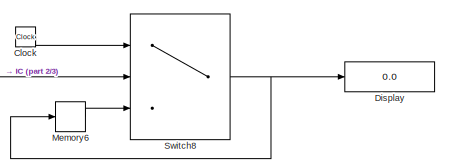
[diagram: root canvas - part 1/3, top right region]
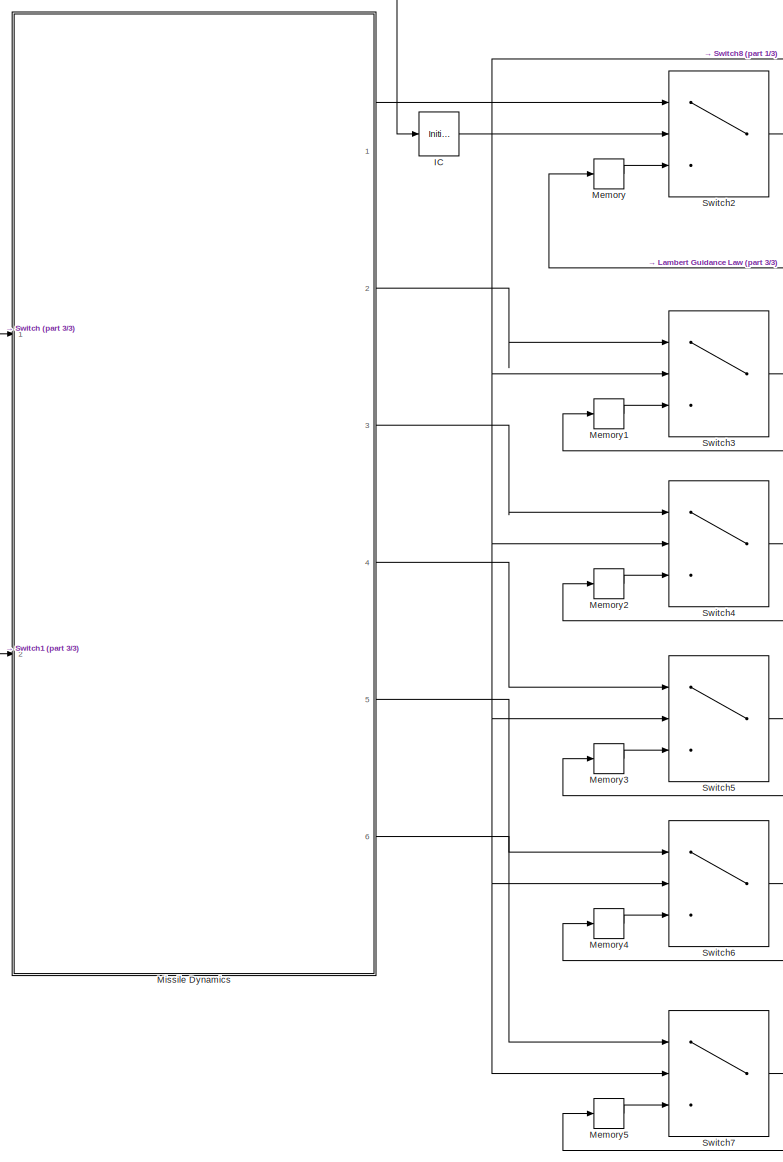
[diagram: root canvas - part 2/3, center side, full height]
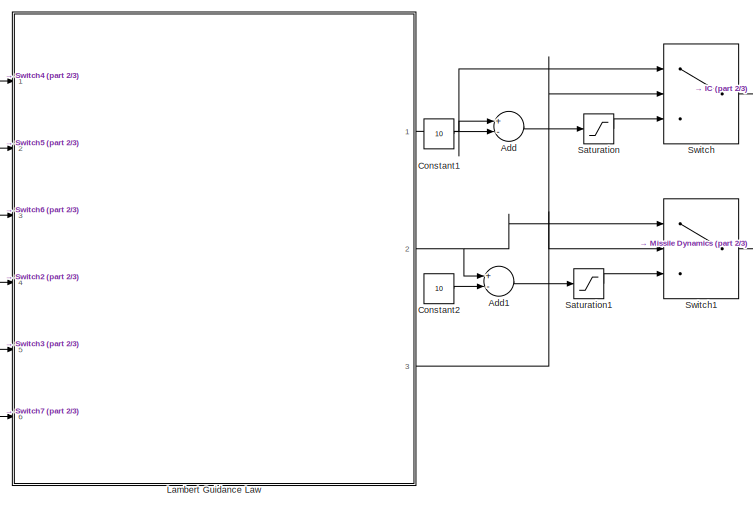
[diagram: root canvas - part 3/3, middle left region]
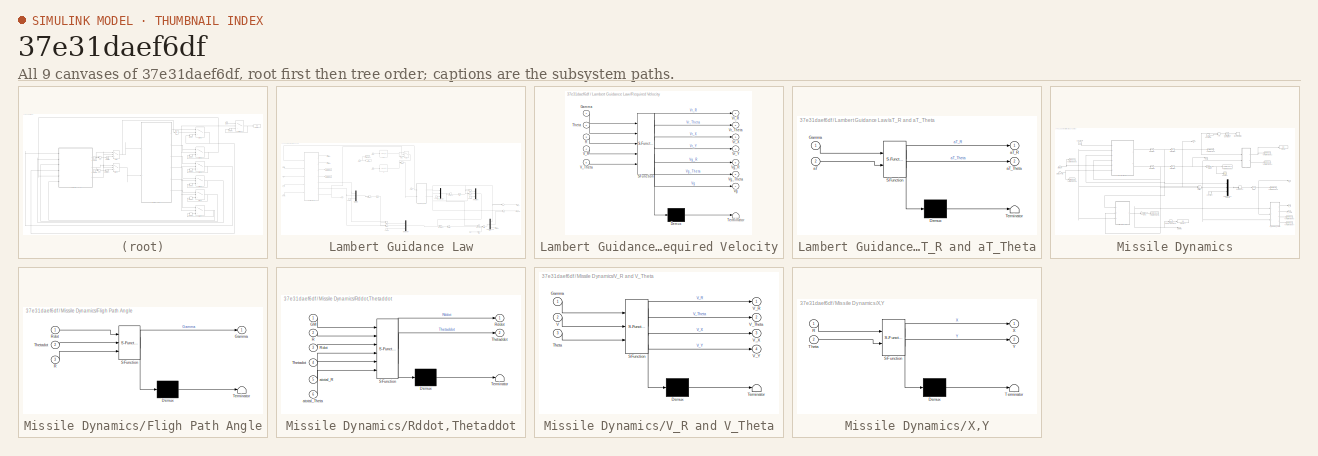
[diagram: thumbnail index - all 9 canvases of the model, root first then tree order]
MODEL slx_37e31daef6df
KIND model
CONFIG AbsTol = auto
CONFIG EnableMultiTasking = off
CONFIG FixedStep = 0.002
CONFIG InitFcn = Initial_Data
CONFIG MaxStep = auto
CONFIG MinStep = auto
CONFIG RelTol = 1e-3
CONFIG SampleTimeConstraint = Unconstrained
CONFIG Solver = FixedStepAuto
CONFIG SolverName = FixedStepAuto
CONFIG StartTime = 0.0
CONFIG StopFcn = Plots_Problme_1_Part_B
CONFIG StopTime = 600
BLOCK [Sum] Add
  InputSameDT = off
  Inputs = +-
  OutDataTypeStr = Inherit: Inherit via internal rule
  Ports = [2, 1]
  SaturateOnIntegerOverflow = off
BLOCK [Sum] Add1
  InputSameDT = off
  Inputs = +-
  OutDataTypeStr = Inherit: Inherit via internal rule
  Ports = [2, 1]
  SaturateOnIntegerOverflow = off
BLOCK [Clock] Clock
BLOCK [Constant] Constant1
  Value = 10
BLOCK [Constant] Constant2
  Value = 10
BLOCK [Display] Display
  Decimation = 1
  Format = long
  Ports = [1]
BLOCK [InitialCondition] IC
  Value = 0.01
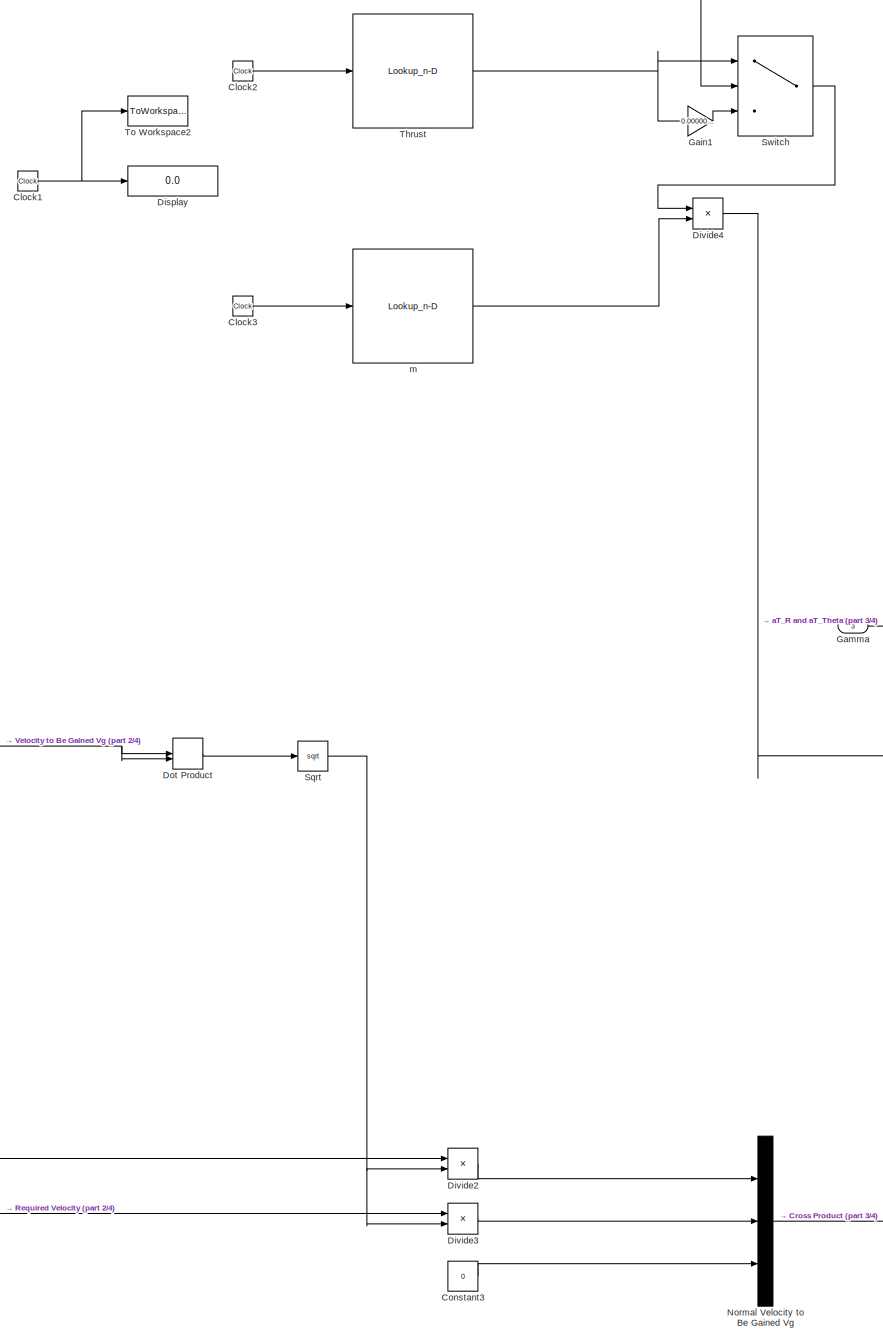
[diagram: Lambert Guidance Law - part 1/4, center side, full height]
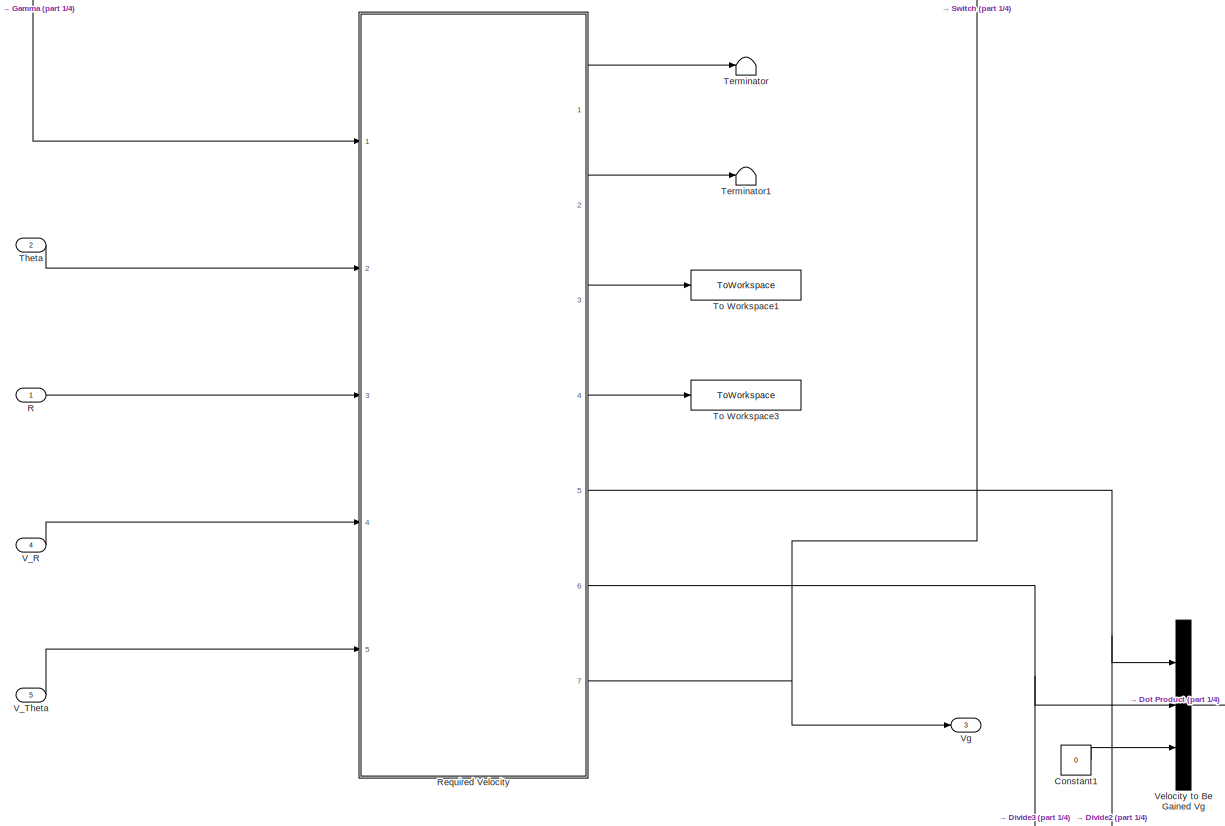
[diagram: Lambert Guidance Law - part 2/4, middle left region]
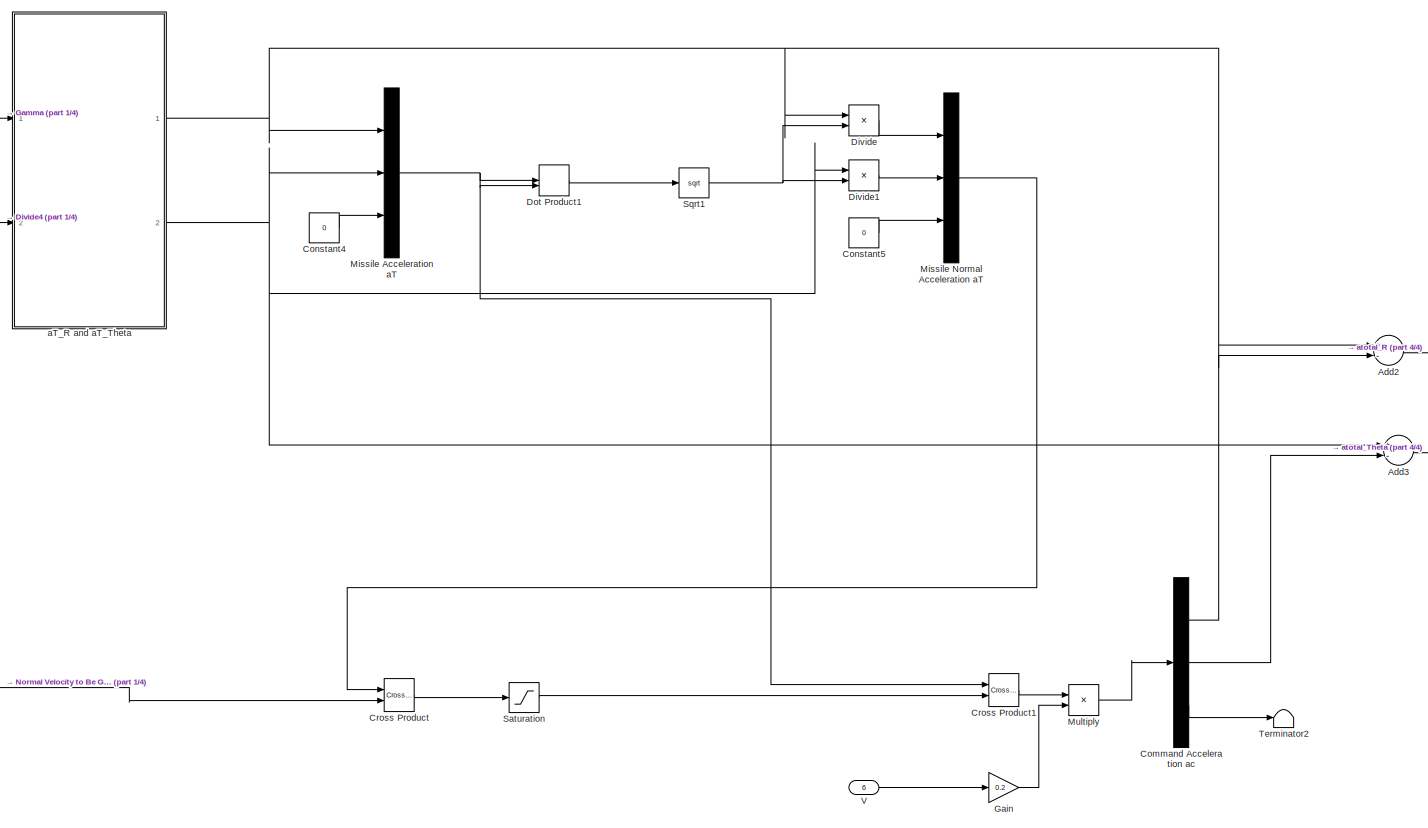
[diagram: Lambert Guidance Law - part 3/4, bottom right region]
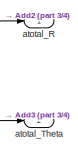
[diagram: Lambert Guidance Law - part 4/4, bottom right region]
BLOCK [SubSystem] Lambert Guidance Law
  Ports = [6, 3]
  RequestExecContextInheritance = off
BLOCK [Sum] Lambert Guidance Law/Add2
  InputSameDT = off
  Inputs = +-
  OutDataTypeStr = Inherit: Inherit via internal rule
  Ports = [2, 1]
  SaturateOnIntegerOverflow = off
BLOCK [Sum] Lambert Guidance Law/Add3
  InputSameDT = off
  Inputs = +-
  OutDataTypeStr = Inherit: Inherit via internal rule
  Ports = [2, 1]
  SaturateOnIntegerOverflow = off
BLOCK [Clock] Lambert Guidance Law/Clock1
BLOCK [Clock] Lambert Guidance Law/Clock2
BLOCK [Clock] Lambert Guidance Law/Clock3
BLOCK [Demux] Lambert Guidance Law/Command Acceleration ac
  DisplayOption = bar
  Outputs = 3
  Ports = [1, 3]
BLOCK [Constant] Lambert Guidance Law/Constant1
  Value = 0
BLOCK [Constant] Lambert Guidance Law/Constant3
  Value = 0
BLOCK [Constant] Lambert Guidance Law/Constant4
  Value = 0
BLOCK [Constant] Lambert Guidance Law/Constant5
  Value = 0
BLOCK [Reference] Lambert Guidance Law/Cross Product  REF=vrlib/Utilities/Cross Product
  Ports = [2, 1]
  SourceBlock = vrlib/Utilities/Cross Product
  SourceProductBaseCode = VR
  SourceProductName = Simulink 3D Animation
  SourceType = Cross Product
BLOCK [Reference] Lambert Guidance Law/Cross Product1  REF=vrlib/Utilities/Cross Product
  Ports = [2, 1]
  SourceBlock = vrlib/Utilities/Cross Product
  SourceProductBaseCode = VR
  SourceProductName = Simulink 3D Animation
  SourceType = Cross Product
BLOCK [Display] Lambert Guidance Law/Display
  Decimation = 1
  Format = long
  Ports = [1]
BLOCK [Product] Lambert Guidance Law/Divide
  InputSameDT = off
  Inputs = */
  OutDataTypeStr = Inherit: Inherit via internal rule
  Ports = [2, 1]
  RndMeth = Floor
  SaturateOnIntegerOverflow = off
BLOCK [Product] Lambert Guidance Law/Divide1
  InputSameDT = off
  Inputs = */
  OutDataTypeStr = Inherit: Inherit via internal rule
  Ports = [2, 1]
  RndMeth = Floor
  SaturateOnIntegerOverflow = off
BLOCK [Product] Lambert Guidance Law/Divide2
  InputSameDT = off
  Inputs = */
  OutDataTypeStr = Inherit: Inherit via internal rule
  Ports = [2, 1]
  RndMeth = Floor
  SaturateOnIntegerOverflow = off
BLOCK [Product] Lambert Guidance Law/Divide3
  InputSameDT = off
  Inputs = */
  OutDataTypeStr = Inherit: Inherit via internal rule
  Ports = [2, 1]
  RndMeth = Floor
  SaturateOnIntegerOverflow = off
BLOCK [Product] Lambert Guidance Law/Divide4
  InputSameDT = off
  Inputs = */
  OutDataTypeStr = Inherit: Inherit via internal rule
  Ports = [2, 1]
  RndMeth = Floor
  SaturateOnIntegerOverflow = off
BLOCK [DotProduct] Lambert Guidance Law/Dot Product
  OutDataTypeStr = Inherit: Inherit via internal rule
BLOCK [DotProduct] Lambert Guidance Law/Dot Product1
  OutDataTypeStr = Inherit: Inherit via internal rule
BLOCK [Gain] Lambert Guidance Law/Gain
  Gain = 0.2
  OutDataTypeStr = Inherit: Inherit via internal rule
  ParamDataTypeStr = Inherit: Inherit via internal rule
  SaturateOnIntegerOverflow = off
BLOCK [Gain] Lambert Guidance Law/Gain1
  Gain = 0.000000000001
  OutDataTypeStr = Inherit: Inherit via internal rule
  ParamDataTypeStr = Inherit: Inherit via internal rule
  SaturateOnIntegerOverflow = off
BLOCK [Inport] Lambert Guidance Law/Gamma
  IconDisplay = Port number
  Port = 3
BLOCK [Mux] Lambert Guidance Law/Missile Acceleration aT
  DisplayOption = bar
  Inputs = 3
  Ports = [3, 1]
BLOCK [Mux] Lambert Guidance Law/Missile Normal Acceleration aT
  DisplayOption = bar
  Inputs = 3
  Ports = [3, 1]
BLOCK [Product] Lambert Guidance Law/Multiply
  InputSameDT = off
  OutDataTypeStr = Inherit: Inherit via internal rule
  Ports = [2, 1]
  RndMeth = Floor
  SaturateOnIntegerOverflow = off
BLOCK [Mux] Lambert Guidance Law/Normal Velocity to Be Gained Vg
  DisplayOption = bar
  Inputs = 3
  Ports = [3, 1]
BLOCK [Inport] Lambert Guidance Law/R
  IconDisplay = Port number
BLOCK [SubSystem] Lambert Guidance Law/Required Velocity
  ErrorFcn = Stateflow.Translate.translate
  PermitHierarchicalResolution = ExplicitOnly
  Ports = [5, 7]
  RequestExecContextInheritance = off
  SFBlockType = MATLAB Function
  TreatAsAtomicUnit = on
BLOCK [Demux] Lambert Guidance Law/Required Velocity/ Demux 
  Outputs = 1
  Ports = [1, 1]
BLOCK [S-Function] Lambert Guidance Law/Required Velocity/ SFunction 
  EnableBusSupport = on
  FunctionName = sf_sfun
  PortCounts = [5 8]
  Ports = [5, 8]
  SFcnIsStateOwnerBlock = off
  SFunctionDeploymentMode = off
  Tag = Stateflow S-Function Problem_1_Part_B 9
BLOCK [Terminator] Lambert Guidance Law/Required Velocity/ Terminator 
BLOCK [Inport] Lambert Guidance Law/Required Velocity/Gamma
  IconDisplay = Port number
BLOCK [Inport] Lambert Guidance Law/Required Velocity/R
  IconDisplay = Port number
  Port = 3
BLOCK [Inport] Lambert Guidance Law/Required Velocity/Theta
  IconDisplay = Port number
  Port = 2
BLOCK [Inport] Lambert Guidance Law/Required Velocity/V_R
  IconDisplay = Port number
  Port = 4
BLOCK [Inport] Lambert Guidance Law/Required Velocity/V_Theta
  IconDisplay = Port number
  Port = 5
BLOCK [Outport] Lambert Guidance Law/Required Velocity/Vg
  IconDisplay = Port number
  Port = 7
BLOCK [Outport] Lambert Guidance Law/Required Velocity/Vg_R
  IconDisplay = Port number
  Port = 5
BLOCK [Outport] Lambert Guidance Law/Required Velocity/Vg_Theta
  IconDisplay = Port number
  Port = 6
BLOCK [Outport] Lambert Guidance Law/Required Velocity/Vr_R
  IconDisplay = Port number
BLOCK [Outport] Lambert Guidance Law/Required Velocity/Vr_Theta
  IconDisplay = Port number
  Port = 2
BLOCK [Outport] Lambert Guidance Law/Required Velocity/Vr_X
  IconDisplay = Port number
  Port = 3
BLOCK [Outport] Lambert Guidance Law/Required Velocity/Vr_Y
  IconDisplay = Port number
  Port = 4
BLOCK [Saturate] Lambert Guidance Law/Saturation
  InputPortMap = u0
  LowerLimit = -1*pi/180
  Ports = [1, 1]
  UpperLimit = 1*pi/180
BLOCK [Sqrt] Lambert Guidance Law/Sqrt
BLOCK [Sqrt] Lambert Guidance Law/Sqrt1
BLOCK [Switch] Lambert Guidance Law/Switch
  Criteria = u2 > Threshold
  InputSameDT = off
  SaturateOnIntegerOverflow = off
  Threshold = errorV
BLOCK [Terminator] Lambert Guidance Law/Terminator
BLOCK [Terminator] Lambert Guidance Law/Terminator1
BLOCK [Terminator] Lambert Guidance Law/Terminator2
BLOCK [Inport] Lambert Guidance Law/Theta
  IconDisplay = Port number
  Port = 2
BLOCK [Lookup_n-D] Lambert Guidance Law/Thrust
  BreakpointsForDimension1 = [0;60;61]
  InternalRulePriority = Speed
  NumberOfTableDimensions = 1
  Ports = [1, 1]
  RndMeth = Simplest
  Table = [160000;160000;160000]
BLOCK [ToWorkspace] Lambert Guidance Law/To Workspace1
  FixptAsFi = on
  MaxDataPoints = inf
  Ports = [1]
  SampleTime = -1
  Save2DSignal = 3-D array (concatenate along third dimension)
  VariableName = Vr_X
BLOCK [ToWorkspace] Lambert Guidance Law/To Workspace2
  FixptAsFi = on
  MaxDataPoints = inf
  Ports = [1]
  SampleTime = -1
  Save2DSignal = 3-D array (concatenate along third dimension)
  VariableName = t
BLOCK [ToWorkspace] Lambert Guidance Law/To Workspace3
  FixptAsFi = on
  MaxDataPoints = inf
  Ports = [1]
  SampleTime = -1
  Save2DSignal = 3-D array (concatenate along third dimension)
  VariableName = Vr_Y
BLOCK [Inport] Lambert Guidance Law/V
  IconDisplay = Port number
  Port = 6
BLOCK [Inport] Lambert Guidance Law/V_R
  IconDisplay = Port number
  Port = 4
BLOCK [Inport] Lambert Guidance Law/V_Theta
  IconDisplay = Port number
  Port = 5
BLOCK [Mux] Lambert Guidance Law/Velocity to Be Gained Vg
  DisplayOption = bar
  Inputs = 3
  Ports = [3, 1]
BLOCK [Outport] Lambert Guidance Law/Vg
  IconDisplay = Port number
  Port = 3
BLOCK [SubSystem] Lambert Guidance Law/aT_R and aT_Theta
  ErrorFcn = Stateflow.Translate.translate
  PermitHierarchicalResolution = ExplicitOnly
  Ports = [2, 2]
  RequestExecContextInheritance = off
  SFBlockType = MATLAB Function
  TreatAsAtomicUnit = on
BLOCK [Demux] Lambert Guidance Law/aT_R and aT_Theta/ Demux 
  Outputs = 1
  Ports = [1, 1]
BLOCK [S-Function] Lambert Guidance Law/aT_R and aT_Theta/ SFunction 
  EnableBusSupport = on
  FunctionName = sf_sfun
  PortCounts = [2 3]
  Ports = [2, 3]
  SFcnIsStateOwnerBlock = off
  SFunctionDeploymentMode = off
  Tag = Stateflow S-Function Problem_1_Part_B 8
BLOCK [Terminator] Lambert Guidance Law/aT_R and aT_Theta/ Terminator 
BLOCK [Inport] Lambert Guidance Law/aT_R and aT_Theta/Gamma
  IconDisplay = Port number
BLOCK [Inport] Lambert Guidance Law/aT_R and aT_Theta/aT
  IconDisplay = Port number
  Port = 2
BLOCK [Outport] Lambert Guidance Law/aT_R and aT_Theta/aT_R
  IconDisplay = Port number
BLOCK [Outport] Lambert Guidance Law/aT_R and aT_Theta/aT_Theta
  IconDisplay = Port number
  Port = 2
BLOCK [Outport] Lambert Guidance Law/atotal_R
  IconDisplay = Port number
BLOCK [Outport] Lambert Guidance Law/atotal_Theta
  IconDisplay = Port number
  Port = 2
BLOCK [Lookup_n-D] Lambert Guidance Law/m
  BreakpointsForDimension1 = [0;60;61]
  InternalRulePriority = Speed
  NumberOfTableDimensions = 1
  Ports = [1, 1]
  RndMeth = Simplest
  Table = [3000;320;320]
BLOCK [Memory] Memory
BLOCK [Memory] Memory1
BLOCK [Memory] Memory2
BLOCK [Memory] Memory3
BLOCK [Memory] Memory4
BLOCK [Memory] Memory5
BLOCK [Memory] Memory6
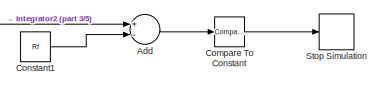
[diagram: Missile Dynamics - part 1/5, top right region]
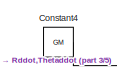
[diagram: Missile Dynamics - part 2/5, top left region]
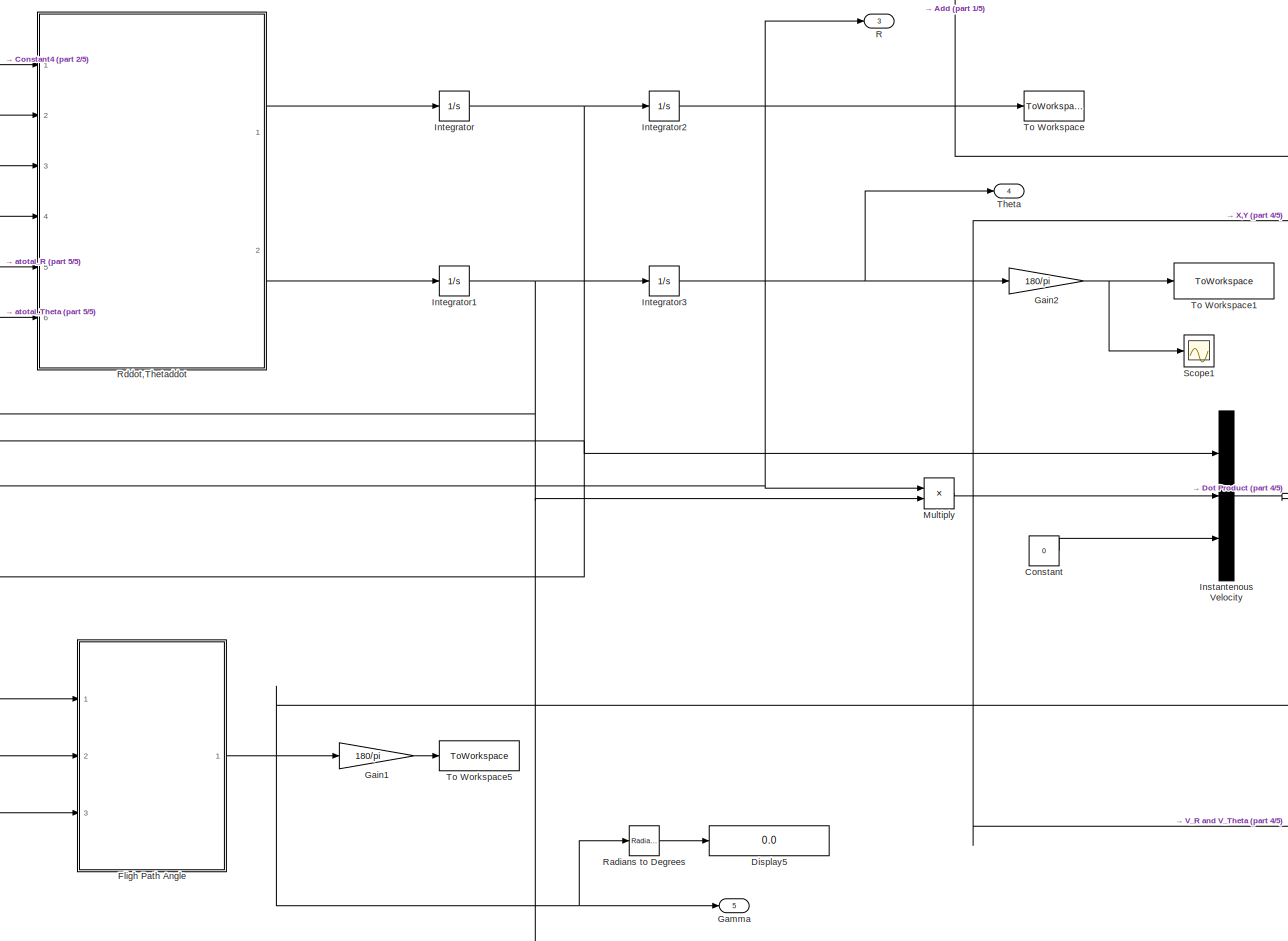
[diagram: Missile Dynamics - part 3/5, center side, full height]
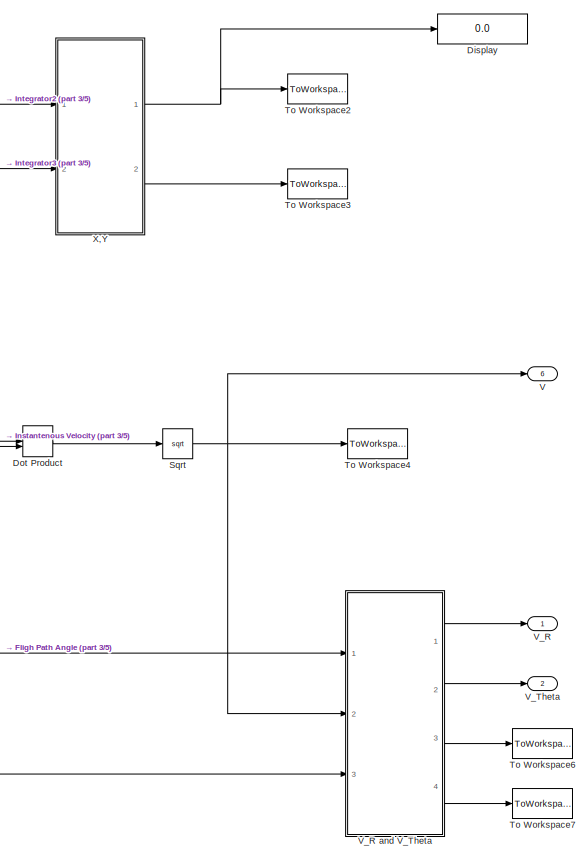
[diagram: Missile Dynamics - part 4/5, right side, full height]
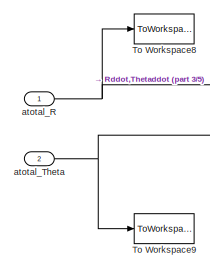
[diagram: Missile Dynamics - part 5/5, middle left region]
BLOCK [SubSystem] Missile Dynamics
  Ports = [2, 6]
  RequestExecContextInheritance = off
BLOCK [Sum] Missile Dynamics/Add
  InputSameDT = off
  Inputs = +-
  OutDataTypeStr = Inherit: Inherit via internal rule
  Ports = [2, 1]
  SaturateOnIntegerOverflow = off
BLOCK [Reference] Missile Dynamics/Compare To Constant  REF=simulink/Logic and Bit
Operations/Compare
To Constant
  Ports = [1, 1]
  SourceBlock = simulink/Logic and Bit\nOperations/Compare\nTo Constant
  SourceProductBaseCode = SL
  SourceProductName = Simulink
  SourceType = Compare To Constant
BLOCK [Constant] Missile Dynamics/Constant
  Value = 0
BLOCK [Constant] Missile Dynamics/Constant1
  Value = Rf
BLOCK [Constant] Missile Dynamics/Constant4
  Value = GM
BLOCK [Display] Missile Dynamics/Display
  Decimation = 1
  Format = long
  Ports = [1]
BLOCK [Display] Missile Dynamics/Display5
  Decimation = 1
  Format = long
  Ports = [1]
BLOCK [DotProduct] Missile Dynamics/Dot Product
  OutDataTypeStr = Inherit: Inherit via internal rule
BLOCK [SubSystem] Missile Dynamics/Fligh Path Angle
  ErrorFcn = Stateflow.Translate.translate
  PermitHierarchicalResolution = ExplicitOnly
  Ports = [3, 1]
  RequestExecContextInheritance = off
  SFBlockType = MATLAB Function
  TreatAsAtomicUnit = on
BLOCK [Demux] Missile Dynamics/Fligh Path Angle/ Demux 
  Outputs = 1
  Ports = [1, 1]
BLOCK [S-Function] Missile Dynamics/Fligh Path Angle/ SFunction 
  EnableBusSupport = on
  FunctionName = sf_sfun
  PortCounts = [3 2]
  Ports = [3, 2]
  SFcnIsStateOwnerBlock = off
  SFunctionDeploymentMode = off
  Tag = Stateflow S-Function Problem_1_Part_B 1
BLOCK [Terminator] Missile Dynamics/Fligh Path Angle/ Terminator 
BLOCK [Outport] Missile Dynamics/Fligh Path Angle/Gamma
  IconDisplay = Port number
BLOCK [Inport] Missile Dynamics/Fligh Path Angle/R
  IconDisplay = Port number
  Port = 3
BLOCK [Inport] Missile Dynamics/Fligh Path Angle/Rdot
  IconDisplay = Port number
BLOCK [Inport] Missile Dynamics/Fligh Path Angle/Thetadot
  IconDisplay = Port number
  Port = 2
BLOCK [Gain] Missile Dynamics/Gain1
  Gain = 180/pi
  OutDataTypeStr = Inherit: Inherit via internal rule
  ParamDataTypeStr = Inherit: Inherit via internal rule
  SaturateOnIntegerOverflow = off
BLOCK [Gain] Missile Dynamics/Gain2
  Gain = 180/pi
  OutDataTypeStr = Inherit: Inherit via internal rule
  ParamDataTypeStr = Inherit: Inherit via internal rule
  SaturateOnIntegerOverflow = off
BLOCK [Outport] Missile Dynamics/Gamma
  IconDisplay = Port number
  Port = 5
BLOCK [Mux] Missile Dynamics/Instantenous Velocity
  DisplayOption = bar
  Inputs = 3
  Ports = [3, 1]
BLOCK [Integrator] Missile Dynamics/Integrator
  InitialCondition = V0*sin(Gamma0)
  Ports = [1, 1]
BLOCK [Integrator] Missile Dynamics/Integrator1
  InitialCondition = (V0*cos(Gamma0))/R0
  Ports = [1, 1]
BLOCK [Integrator] Missile Dynamics/Integrator2
  InitialCondition = R0
  Ports = [1, 1]
BLOCK [Integrator] Missile Dynamics/Integrator3
  InitialCondition = Long0*pi/180
  Ports = [1, 1]
BLOCK [Product] Missile Dynamics/Multiply
  InputSameDT = off
  OutDataTypeStr = Inherit: Inherit via internal rule
  Ports = [2, 1]
  RndMeth = Floor
  SaturateOnIntegerOverflow = off
BLOCK [Outport] Missile Dynamics/R
  IconDisplay = Port number
  Port = 3
BLOCK [Reference] Missile Dynamics/Radians to Degrees  REF=simulink_extras/Transformations/Radians
to Degrees
  Ports = [1, 1]
  SourceBlock = simulink_extras/Transformations/Radians\nto Degrees
  SourceProductBaseCode = SL
  SourceProductName = Simulink
  SourceType = RadiansToDegrees
BLOCK [SubSystem] Missile Dynamics/Rddot,Thetaddot
  ErrorFcn = Stateflow.Translate.translate
  PermitHierarchicalResolution = ExplicitOnly
  Ports = [6, 2]
  RequestExecContextInheritance = off
  SFBlockType = MATLAB Function
  TreatAsAtomicUnit = on
BLOCK [Demux] Missile Dynamics/Rddot,Thetaddot/ Demux 
  Outputs = 1
  Ports = [1, 1]
BLOCK [S-Function] Missile Dynamics/Rddot,Thetaddot/ SFunction 
  EnableBusSupport = on
  FunctionName = sf_sfun
  PortCounts = [6 3]
  Ports = [6, 3]
  SFcnIsStateOwnerBlock = off
  SFunctionDeploymentMode = off
  Tag = Stateflow S-Function Problem_1_Part_B 3
BLOCK [Terminator] Missile Dynamics/Rddot,Thetaddot/ Terminator 
BLOCK [Inport] Missile Dynamics/Rddot,Thetaddot/GM
  IconDisplay = Port number
BLOCK [Inport] Missile Dynamics/Rddot,Thetaddot/R
  IconDisplay = Port number
  Port = 2
BLOCK [Outport] Missile Dynamics/Rddot,Thetaddot/Rddot
  IconDisplay = Port number
BLOCK [Inport] Missile Dynamics/Rddot,Thetaddot/Rdot
  IconDisplay = Port number
  Port = 3
BLOCK [Outport] Missile Dynamics/Rddot,Thetaddot/Thetaddot
  IconDisplay = Port number
  Port = 2
BLOCK [Inport] Missile Dynamics/Rddot,Thetaddot/Thetadot
  IconDisplay = Port number
  Port = 4
BLOCK [Inport] Missile Dynamics/Rddot,Thetaddot/atotal_R
  IconDisplay = Port number
  Port = 5
BLOCK [Inport] Missile Dynamics/Rddot,Thetaddot/atotal_Theta
  IconDisplay = Port number
  Port = 6
BLOCK [Scope] Missile Dynamics/Scope1
  Floating = off
  NumInputPorts = 1
  Ports = [1]
  ScopeSpecificationString = Simulink.scopes.TimeScopeBlockCfg('CurrentConfiguration', extmgr.ConfigurationSet(extmgr.Configuration('Core','General UI',true),extmgr.Configuration('Core','Source UI',true),extmgr.Configuration('Sources','WiredSimulink',true,'DataLoggingVariableName','ScopeData1'),extmgr.Configuration('Visuals','Time Domain',true,'SerializedDisplays',{struct('MinYLimReal','33.12599','MaxYLimReal','51.86609','YLa...<+1370ch>
BLOCK [Sqrt] Missile Dynamics/Sqrt
BLOCK [Stop] Missile Dynamics/Stop Simulation
BLOCK [Outport] Missile Dynamics/Theta
  IconDisplay = Port number
  Port = 4
BLOCK [ToWorkspace] Missile Dynamics/To Workspace
  FixptAsFi = on
  MaxDataPoints = inf
  Ports = [1]
  SampleTime = -1
  Save2DSignal = 3-D array (concatenate along third dimension)
  VariableName = R
BLOCK [ToWorkspace] Missile Dynamics/To Workspace1
  FixptAsFi = on
  MaxDataPoints = inf
  Ports = [1]
  SampleTime = -1
  Save2DSignal = 3-D array (concatenate along third dimension)
  VariableName = Theta
BLOCK [ToWorkspace] Missile Dynamics/To Workspace2
  FixptAsFi = on
  MaxDataPoints = inf
  Ports = [1]
  SampleTime = -1
  Save2DSignal = 3-D array (concatenate along third dimension)
  VariableName = X
BLOCK [ToWorkspace] Missile Dynamics/To Workspace3
  FixptAsFi = on
  MaxDataPoints = inf
  Ports = [1]
  SampleTime = -1
  Save2DSignal = 3-D array (concatenate along third dimension)
  VariableName = Y
BLOCK [ToWorkspace] Missile Dynamics/To Workspace4
  FixptAsFi = on
  MaxDataPoints = inf
  Ports = [1]
  SampleTime = -1
  Save2DSignal = 3-D array (concatenate along third dimension)
  VariableName = V
BLOCK [ToWorkspace] Missile Dynamics/To Workspace5
  FixptAsFi = on
  MaxDataPoints = inf
  Ports = [1]
  SampleTime = -1
  Save2DSignal = 3-D array (concatenate along third dimension)
  VariableName = Gamma
BLOCK [ToWorkspace] Missile Dynamics/To Workspace6
  FixptAsFi = on
  MaxDataPoints = inf
  Ports = [1]
  SampleTime = -1
  Save2DSignal = 3-D array (concatenate along third dimension)
  VariableName = V_X
BLOCK [ToWorkspace] Missile Dynamics/To Workspace7
  FixptAsFi = on
  MaxDataPoints = inf
  Ports = [1]
  SampleTime = -1
  Save2DSignal = 3-D array (concatenate along third dimension)
  VariableName = V_Y
BLOCK [ToWorkspace] Missile Dynamics/To Workspace8
  FixptAsFi = on
  MaxDataPoints = inf
  Ports = [1]
  SampleTime = -1
  Save2DSignal = 3-D array (concatenate along third dimension)
  VariableName = atotal_R
BLOCK [ToWorkspace] Missile Dynamics/To Workspace9
  FixptAsFi = on
  MaxDataPoints = inf
  Ports = [1]
  SampleTime = -1
  Save2DSignal = 3-D array (concatenate along third dimension)
  VariableName = atotal_Theta
BLOCK [Outport] Missile Dynamics/V
  IconDisplay = Port number
  Port = 6
BLOCK [Outport] Missile Dynamics/V_R
  IconDisplay = Port number
BLOCK [SubSystem] Missile Dynamics/V_R and V_Theta
  ErrorFcn = Stateflow.Translate.translate
  PermitHierarchicalResolution = ExplicitOnly
  Ports = [3, 4]
  RequestExecContextInheritance = off
  SFBlockType = MATLAB Function
  TreatAsAtomicUnit = on
BLOCK [Demux] Missile Dynamics/V_R and V_Theta/ Demux 
  Outputs = 1
  Ports = [1, 1]
BLOCK [S-Function] Missile Dynamics/V_R and V_Theta/ SFunction 
  EnableBusSupport = on
  FunctionName = sf_sfun
  PortCounts = [3 5]
  Ports = [3, 5]
  SFcnIsStateOwnerBlock = off
  SFunctionDeploymentMode = off
  Tag = Stateflow S-Function Problem_1_Part_B 6
BLOCK [Terminator] Missile Dynamics/V_R and V_Theta/ Terminator 
BLOCK [Inport] Missile Dynamics/V_R and V_Theta/Gamma
  IconDisplay = Port number
BLOCK [Inport] Missile Dynamics/V_R and V_Theta/Theta
  IconDisplay = Port number
  Port = 3
BLOCK [Inport] Missile Dynamics/V_R and V_Theta/V
  IconDisplay = Port number
  Port = 2
BLOCK [Outport] Missile Dynamics/V_R and V_Theta/V_R
  IconDisplay = Port number
BLOCK [Outport] Missile Dynamics/V_R and V_Theta/V_Theta
  IconDisplay = Port number
  Port = 2
BLOCK [Outport] Missile Dynamics/V_R and V_Theta/V_X
  IconDisplay = Port number
  Port = 3
BLOCK [Outport] Missile Dynamics/V_R and V_Theta/V_Y
  IconDisplay = Port number
  Port = 4
BLOCK [Outport] Missile Dynamics/V_Theta
  IconDisplay = Port number
  Port = 2
BLOCK [SubSystem] Missile Dynamics/X,Y
  ErrorFcn = Stateflow.Translate.translate
  PermitHierarchicalResolution = ExplicitOnly
  Ports = [2, 2]
  RequestExecContextInheritance = off
  SFBlockType = MATLAB Function
  TreatAsAtomicUnit = on
BLOCK [Demux] Missile Dynamics/X,Y/ Demux 
  Outputs = 1
  Ports = [1, 1]
BLOCK [S-Function] Missile Dynamics/X,Y/ SFunction 
  EnableBusSupport = on
  FunctionName = sf_sfun
  PortCounts = [2 3]
  Ports = [2, 3]
  SFcnIsStateOwnerBlock = off
  SFunctionDeploymentMode = off
  Tag = Stateflow S-Function Problem_1_Part_B 2
BLOCK [Terminator] Missile Dynamics/X,Y/ Terminator 
BLOCK [Inport] Missile Dynamics/X,Y/R
  IconDisplay = Port number
BLOCK [Inport] Missile Dynamics/X,Y/Theta
  IconDisplay = Port number
  Port = 2
BLOCK [Outport] Missile Dynamics/X,Y/X
  IconDisplay = Port number
BLOCK [Outport] Missile Dynamics/X,Y/Y
  IconDisplay = Port number
  Port = 2
BLOCK [Inport] Missile Dynamics/atotal_R
  IconDisplay = Port number
BLOCK [Inport] Missile Dynamics/atotal_Theta
  IconDisplay = Port number
  Port = 2
BLOCK [Saturate] Saturation
  InputPortMap = u0
  LowerLimit = 0
  Ports = [1, 1]
  UpperLimit = inf
BLOCK [Saturate] Saturation1
  InputPortMap = u0
  LowerLimit = 0
  Ports = [1, 1]
  UpperLimit = inf
BLOCK [Switch] Switch
  Criteria = u2 > Threshold
  InputSameDT = off
  SaturateOnIntegerOverflow = off
  Threshold = errorV
BLOCK [Switch] Switch1
  Criteria = u2 > Threshold
  InputSameDT = off
  SaturateOnIntegerOverflow = off
  Threshold = errorV
BLOCK [Switch] Switch2
  Criteria = u2 ~= 0
  InputSameDT = off
  SaturateOnIntegerOverflow = off
  Threshold = 45.054
BLOCK [Switch] Switch3
  Criteria = u2 ~= 0
  InputSameDT = off
  SaturateOnIntegerOverflow = off
  Threshold = 45.054
BLOCK [Switch] Switch4
  Criteria = u2 ~= 0
  InputSameDT = off
  SaturateOnIntegerOverflow = off
  Threshold = 45.054
BLOCK [Switch] Switch5
  Criteria = u2 ~= 0
  InputSameDT = off
  SaturateOnIntegerOverflow = off
  Threshold = 45.054
BLOCK [Switch] Switch6
  Criteria = u2 ~= 0
  InputSameDT = off
  SaturateOnIntegerOverflow = off
  Threshold = 45.054
BLOCK [Switch] Switch7
  Criteria = u2 ~= 0
  InputSameDT = off
  SaturateOnIntegerOverflow = off
  Threshold = 45.054
BLOCK [Switch] Switch8
  Criteria = u2 ~= 0
  InputSameDT = off
  SaturateOnIntegerOverflow = off
  Threshold = 45.054
LINE Add1:1 -> Saturation1:1
LINE Add:1 -> Saturation:1
LINE Clock:1 -> Switch8:1
LINE Constant1:1 -> Add:2
LINE Constant2:1 -> Add1:2
NET IC:1 -> Switch2:2, Switch3:2, Switch4:2, Switch5:2, Switch6:2, Switch7:2, Switch8:2
LINE Lambert Guidance Law/Add2:1 -> Lambert Guidance Law/atotal_R:1
LINE Lambert Guidance Law/Add3:1 -> Lambert Guidance Law/atotal_Theta:1
NET Lambert Guidance Law/Clock1:1 -> Lambert Guidance Law/Display:1, Lambert Guidance Law/To Workspace2:1
LINE Lambert Guidance Law/Clock2:1 -> Lambert Guidance Law/Thrust:1
LINE Lambert Guidance Law/Clock3:1 -> Lambert Guidance Law/m:1
LINE Lambert Guidance Law/Command Acceleration ac:1 -> Lambert Guidance Law/Add2:2
LINE Lambert Guidance Law/Command Acceleration ac:2 -> Lambert Guidance Law/Add3:2
LINE Lambert Guidance Law/Command Acceleration ac:3 -> Lambert Guidance Law/Terminator2:1
LINE Lambert Guidance Law/Constant1:1 -> Lambert Guidance Law/Velocity to Be Gained Vg:3
LINE Lambert Guidance Law/Constant3:1 -> Lambert Guidance Law/Normal Velocity to Be Gained Vg:3
LINE Lambert Guidance Law/Constant4:1 -> Lambert Guidance Law/Missile Acceleration aT:3
LINE Lambert Guidance Law/Constant5:1 -> Lambert Guidance Law/Missile Normal Acceleration aT:3
LINE Lambert Guidance Law/Cross Product1:1 -> Lambert Guidance Law/Multiply:1
LINE Lambert Guidance Law/Cross Product:1 -> Lambert Guidance Law/Saturation:1
LINE Lambert Guidance Law/Divide1:1 -> Lambert Guidance Law/Missile Normal Acceleration aT:2
LINE Lambert Guidance Law/Divide2:1 -> Lambert Guidance Law/Normal Velocity to Be Gained Vg:1
LINE Lambert Guidance Law/Divide3:1 -> Lambert Guidance Law/Normal Velocity to Be Gained Vg:2
LINE Lambert Guidance Law/Divide4:1 -> Lambert Guidance Law/aT_R and aT_Theta:2
LINE Lambert Guidance Law/Divide:1 -> Lambert Guidance Law/Missile Normal Acceleration aT:1
LINE Lambert Guidance Law/Dot Product1:1 -> Lambert Guidance Law/Sqrt1:1
LINE Lambert Guidance Law/Dot Product:1 -> Lambert Guidance Law/Sqrt:1
LINE Lambert Guidance Law/Gain1:1 -> Lambert Guidance Law/Switch:3
LINE Lambert Guidance Law/Gain:1 -> Lambert Guidance Law/Multiply:2
NET Lambert Guidance Law/Gamma:1 -> Lambert Guidance Law/Required Velocity:1, Lambert Guidance Law/aT_R and aT_Theta:1
NET Lambert Guidance Law/Missile Acceleration aT:1 -> Lambert Guidance Law/Cross Product1:1, Lambert Guidance Law/Dot Product1:1, Lambert Guidance Law/Dot Product1:2
LINE Lambert Guidance Law/Missile Normal Acceleration aT:1 -> Lambert Guidance Law/Cross Product:1
LINE Lambert Guidance Law/Multiply:1 -> Lambert Guidance Law/Command Acceleration ac:1
LINE Lambert Guidance Law/Normal Velocity to Be Gained Vg:1 -> Lambert Guidance Law/Cross Product:2
LINE Lambert Guidance Law/R:1 -> Lambert Guidance Law/Required Velocity:3
LINE Lambert Guidance Law/Required Velocity:1 -> Lambert Guidance Law/Terminator:1
LINE Lambert Guidance Law/Required Velocity:2 -> Lambert Guidance Law/Terminator1:1
LINE Lambert Guidance Law/Required Velocity:3 -> Lambert Guidance Law/To Workspace1:1
LINE Lambert Guidance Law/Required Velocity:4 -> Lambert Guidance Law/To Workspace3:1
NET Lambert Guidance Law/Required Velocity:5 -> Lambert Guidance Law/Divide2:1, Lambert Guidance Law/Velocity to Be Gained Vg:1
NET Lambert Guidance Law/Required Velocity:6 -> Lambert Guidance Law/Divide3:1, Lambert Guidance Law/Velocity to Be Gained Vg:2
NET Lambert Guidance Law/Required Velocity:7 -> Lambert Guidance Law/Switch:2, Lambert Guidance Law/Vg:1
LINE Lambert Guidance Law/Saturation:1 -> Lambert Guidance Law/Cross Product1:2
NET Lambert Guidance Law/Sqrt1:1 -> Lambert Guidance Law/Divide1:2, Lambert Guidance Law/Divide:2
NET Lambert Guidance Law/Sqrt:1 -> Lambert Guidance Law/Divide2:2, Lambert Guidance Law/Divide3:2
LINE Lambert Guidance Law/Switch:1 -> Lambert Guidance Law/Divide4:1
LINE Lambert Guidance Law/Theta:1 -> Lambert Guidance Law/Required Velocity:2
NET Lambert Guidance Law/Thrust:1 -> Lambert Guidance Law/Gain1:1, Lambert Guidance Law/Switch:1
LINE Lambert Guidance Law/V:1 -> Lambert Guidance Law/Gain:1
LINE Lambert Guidance Law/V_R:1 -> Lambert Guidance Law/Required Velocity:4
LINE Lambert Guidance Law/V_Theta:1 -> Lambert Guidance Law/Required Velocity:5
NET Lambert Guidance Law/Velocity to Be Gained Vg:1 -> Lambert Guidance Law/Dot Product:1, Lambert Guidance Law/Dot Product:2
NET Lambert Guidance Law/aT_R and aT_Theta:1 -> Lambert Guidance Law/Add2:1, Lambert Guidance Law/Divide:1, Lambert Guidance Law/Missile Acceleration aT:1
NET Lambert Guidance Law/aT_R and aT_Theta:2 -> Lambert Guidance Law/Add3:1, Lambert Guidance Law/Divide1:1, Lambert Guidance Law/Missile Acceleration aT:2
LINE Lambert Guidance Law/m:1 -> Lambert Guidance Law/Divide4:2
NET Lambert Guidance Law:1 -> Add:1, Switch:1
NET Lambert Guidance Law:2 -> Add1:1, Switch1:1
NET Lambert Guidance Law:3 -> Switch1:2, Switch:2
LINE Memory1:1 -> Switch3:3
LINE Memory2:1 -> Switch4:3
LINE Memory3:1 -> Switch5:3
LINE Memory4:1 -> Switch6:3
LINE Memory5:1 -> Switch7:3
LINE Memory6:1 -> Switch8:3
LINE Memory:1 -> Switch2:3
LINE Missile Dynamics/Add:1 -> Missile Dynamics/Compare To Constant:1
LINE Missile Dynamics/Compare To Constant:1 -> Missile Dynamics/Stop Simulation:1
LINE Missile Dynamics/Constant1:1 -> Missile Dynamics/Add:2
LINE Missile Dynamics/Constant4:1 -> Missile Dynamics/Rddot,Thetaddot:1
LINE Missile Dynamics/Constant:1 -> Missile Dynamics/Instantenous Velocity:3
LINE Missile Dynamics/Dot Product:1 -> Missile Dynamics/Sqrt:1
NET Missile Dynamics/Fligh Path Angle:1 -> Missile Dynamics/Gain1:1, Missile Dynamics/Gamma:1, Missile Dynamics/Radians to Degrees:1, Missile Dynamics/V_R and V_Theta:1
LINE Missile Dynamics/Gain1:1 -> Missile Dynamics/To Workspace5:1
NET Missile Dynamics/Gain2:1 -> Missile Dynamics/Scope1:1, Missile Dynamics/To Workspace1:1
NET Missile Dynamics/Instantenous Velocity:1 -> Missile Dynamics/Dot Product:1, Missile Dynamics/Dot Product:2
NET Missile Dynamics/Integrator1:1 -> Missile Dynamics/Fligh Path Angle:2, Missile Dynamics/Integrator3:1, Missile Dynamics/Multiply:2, Missile Dynamics/Rddot,Thetaddot:4
NET Missile Dynamics/Integrator2:1 -> Missile Dynamics/Add:1, Missile Dynamics/Fligh Path Angle:3, Missile Dynamics/Multiply:1, Missile Dynamics/R:1, Missile Dynamics/Rddot,Thetaddot:2, Missile Dynamics/To Workspace:1, Missile Dynamics/X,Y:1
NET Missile Dynamics/Integrator3:1 -> Missile Dynamics/Gain2:1, Missile Dynamics/Theta:1, Missile Dynamics/V_R and V_Theta:3, Missile Dynamics/X,Y:2
NET Missile Dynamics/Integrator:1 -> Missile Dynamics/Fligh Path Angle:1, Missile Dynamics/Instantenous Velocity:1, Missile Dynamics/Integrator2:1, Missile Dynamics/Rddot,Thetaddot:3
LINE Missile Dynamics/Multiply:1 -> Missile Dynamics/Instantenous Velocity:2
LINE Missile Dynamics/Radians to Degrees:1 -> Missile Dynamics/Display5:1
LINE Missile Dynamics/Rddot,Thetaddot:1 -> Missile Dynamics/Integrator:1
LINE Missile Dynamics/Rddot,Thetaddot:2 -> Missile Dynamics/Integrator1:1
NET Missile Dynamics/Sqrt:1 -> Missile Dynamics/To Workspace4:1, Missile Dynamics/V:1, Missile Dynamics/V_R and V_Theta:2
LINE Missile Dynamics/V_R and V_Theta:1 -> Missile Dynamics/V_R:1
LINE Missile Dynamics/V_R and V_Theta:2 -> Missile Dynamics/V_Theta:1
LINE Missile Dynamics/V_R and V_Theta:3 -> Missile Dynamics/To Workspace6:1
LINE Missile Dynamics/V_R and V_Theta:4 -> Missile Dynamics/To Workspace7:1
NET Missile Dynamics/X,Y:1 -> Missile Dynamics/Display:1, Missile Dynamics/To Workspace2:1
LINE Missile Dynamics/X,Y:2 -> Missile Dynamics/To Workspace3:1
NET Missile Dynamics/atotal_R:1 -> Missile Dynamics/Rddot,Thetaddot:5, Missile Dynamics/To Workspace8:1
NET Missile Dynamics/atotal_Theta:1 -> Missile Dynamics/Rddot,Thetaddot:6, Missile Dynamics/To Workspace9:1
LINE Missile Dynamics:1 -> Switch2:1
LINE Missile Dynamics:2 -> Switch3:1
LINE Missile Dynamics:3 -> Switch4:1
LINE Missile Dynamics:4 -> Switch5:1
LINE Missile Dynamics:5 -> Switch6:1
LINE Missile Dynamics:6 -> Switch7:1
LINE Saturation1:1 -> Switch1:3
LINE Saturation:1 -> Switch:3
LINE Switch1:1 -> Missile Dynamics:2
NET Switch2:1 -> Lambert Guidance Law:4, Memory:1
NET Switch3:1 -> Lambert Guidance Law:5, Memory1:1
NET Switch4:1 -> Lambert Guidance Law:1, Memory2:1
NET Switch5:1 -> Lambert Guidance Law:2, Memory3:1
NET Switch6:1 -> Lambert Guidance Law:3, Memory4:1
NET Switch7:1 -> Lambert Guidance Law:6, Memory5:1
NET Switch8:1 -> Display:1, Memory6:1
NET Switch:1 -> IC:1, Missile Dynamics:1
note: NET lines group one-source signal fan-out (src -> all destinations, sorted); 1:1 wires keep LINE
CHART Missile Dynamics/Fligh Path Angle states=1 transitions=1
  STATE_LABEL 'eML_blk_kernel()'
  STATE_LABEL 'SCRIPT:\nfunction Gamma = fcn(Rdot,Thetadot,R)\n\nGamma = atan((Rdot)/(R*Thetadot));\n'
CHART Missile Dynamics/X,Y states=1 transitions=1
  STATE_LABEL 'eML_blk_kernel()'
  STATE_LABEL 'SCRIPT:\nfunction [X,Y] = fcn(R,Theta)\n\nX = R*cos(Theta);\nY = R*sin(Theta);\n'
CHART Missile Dynamics/Rddot,Thetaddot states=1 transitions=1
  STATE_LABEL 'eML_blk_kernel()'
  STATE_LABEL 'SCRIPT:\nfunction [Rddot,Thetaddot]  = fcn(GM,R,Rdot,Thetadot,atotal_R,atotal_Theta)\n\nRddot = R*Thetadot^2 - (GM)/(R^2) + atotal_R;\nThetaddot = (-2*Rdot*Thetadot + atotal_Theta)/(R);\n\n'
CHART Missile Dynamics/V_R and V_Theta states=1 transitions=1
  STATE_LABEL 'eML_blk_kernel()'
  STATE_LABEL 'SCRIPT:\nfunction [V_R,V_Theta,V_X,V_Y] = fcn(Gamma,V,Theta)\n\nV_R = V*sin(Gamma);\nV_X = V*sin(Gamma)*cos(Theta);\nV_Y = V*sin(Gamma)*sin(Theta);\nV_Theta = V*cos(Gamma);\n'
CHART Lambert Guidance Law/aT_R and aT_Theta states=1 transitions=1
  STATE_LABEL 'eML_blk_kernel()'
  STATE_LABEL 'SCRIPT:\nfunction [aT_R,aT_Theta] = fcn(Gamma,aT)\n\naT_R = aT*sin(Gamma);\naT_Theta = aT*cos(Gamma);\n'
CHART Lambert Guidance Law/Required Velocity states=1 transitions=1
  STATE_LABEL 'eML_blk_kernel()'
  STATE_LABEL 'SCRIPT:\nfunction [Vr_R,Vr_Theta,Vr_X,Vr_Y,Vg_R,Vg_Theta,Vg] = fcn(Gamma,Theta,R,V_R,V_Theta)\n\n%% Lambert\nLongf = 50*pi/180; %degree%\nRf = 6371000; %m%\nGM = 3.986004418*(10^14); %m^3/s^2%\nPhi = (Longf - Theta);%rad%  \nVr = sqrt( (GM*( 1-cos(Phi)))/((R*cos(Gamma))*((R*cos(Gamma))/(Rf) - cos(Phi+Gamma))) );\n\nVr_R = Vr*sin(Gamma);\nVr_Theta = Vr*cos(Gamma);\nVr_X = Vr*sin(Gamma)*cos(Theta);\nVr_Y = Vr*si...<+110ch>'
